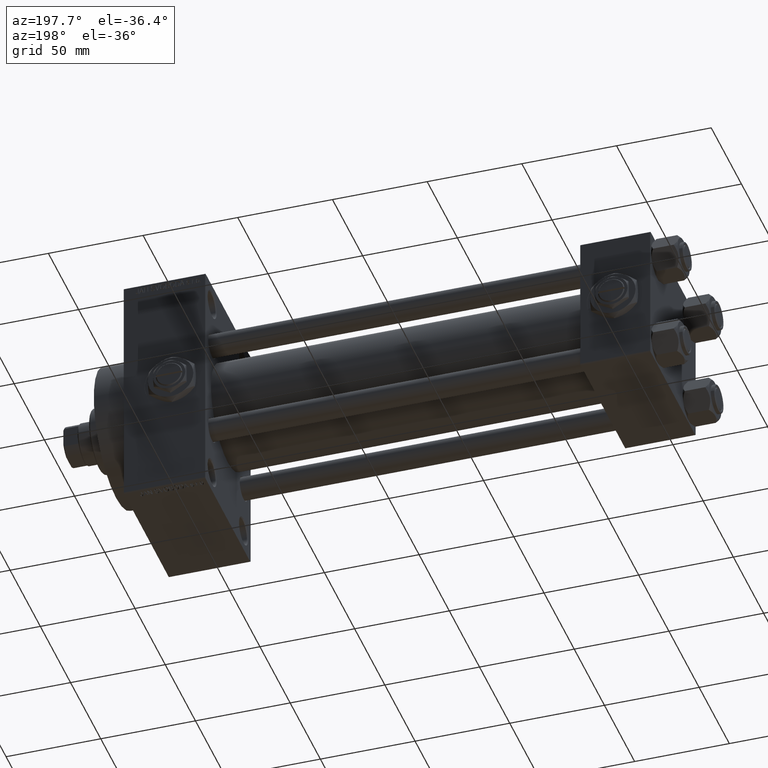
[diagram: clean part render]
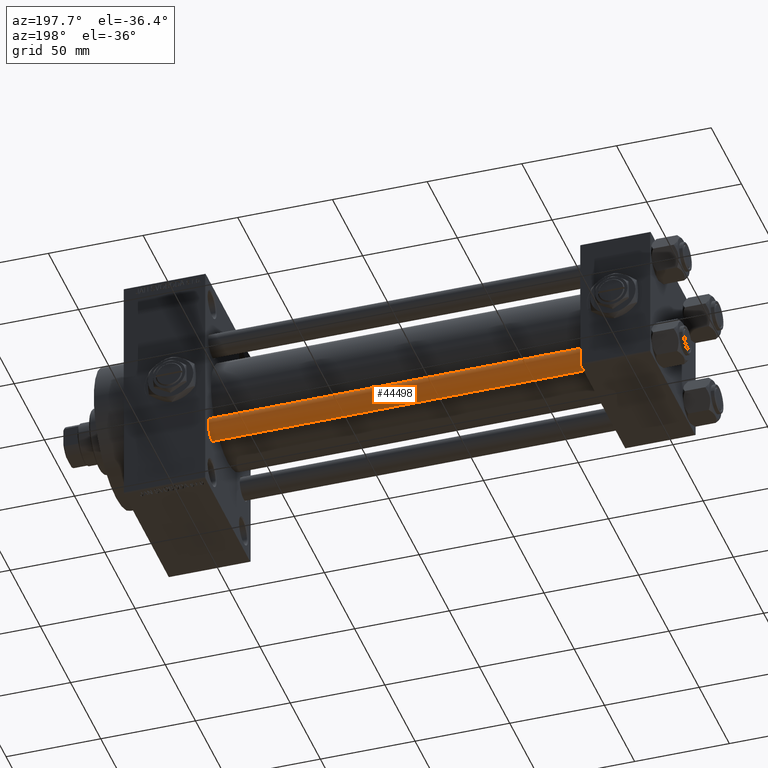
[diagram: same view with one face highlighted and labeled with its STEP entity id]
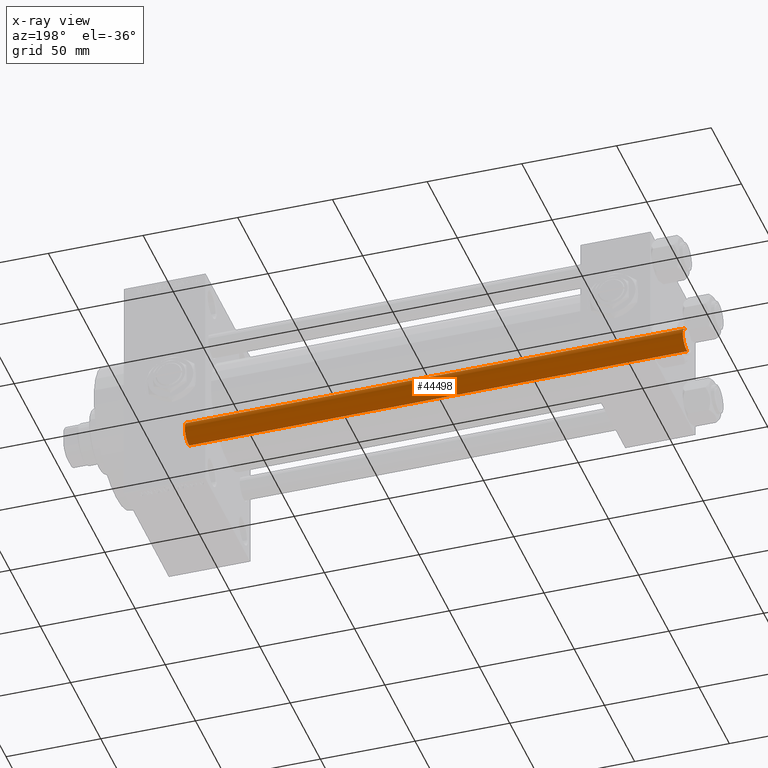
[diagram: x-ray of the same camera — body ghosted, the highlighted face saturated]
A machine part, auxiliary view. The second image highlights one B-rep face of the part: STEP entity #44498.
The next image is the same camera in x-ray: the body ghosted, the highlighted face saturated — about 0% of this face is hidden behind the body in this view.
In plain terms, the highlighted cylindrical surface (edge-blend (fillet) strip) has radius 6 mm, axis along (1, -0, 0).
Its self-contained STEP definition (entity closure, byte-faithful):
#1563 = VERTEX_POINT ( 'NONE', #33703 ) ;
#2226 = ORIENTED_EDGE ( 'NONE', *, *, #37594, .T. ) ;
#2313 = VERTEX_POINT ( 'NONE', #8410 ) ;
#2422 = VERTEX_POINT ( 'NONE', #6818 ) ;
#5471 = CARTESIAN_POINT ( 'NONE',  ( -6.000000000000000888, 0.000000000000000000, 0.5000000000000559552 ) ) ;
#6818 = CARTESIAN_POINT ( 'NONE',  ( -6.000000000000000888, 0.000000000000000000, 263.5000000000000568 ) ) ;
#7358 = CARTESIAN_POINT ( 'NONE',  ( 0.000000000000000000, 0.000000000000000000, 263.5000000000000568 ) ) ;
#7912 = AXIS2_PLACEMENT_3D ( 'NONE', #42910, #12728, #39399 ) ;
#8390 = AXIS2_PLACEMENT_3D ( 'NONE', #9322, #33686, #10781 ) ;
#8410 = CARTESIAN_POINT ( 'NONE',  ( 6.000000000000000888, 7.347880794884120722E-16, 263.5000000000000568 ) ) ;
#8549 = DIRECTION ( 'NONE',  ( -0.000000000000000000, -0.000000000000000000, -1.000000000000000000 ) ) ;
#9229 = EDGE_LOOP ( 'NONE', ( #47485, #2226, #20255, #22831 ) ) ;
#9322 = CARTESIAN_POINT ( 'NONE',  ( 0.000000000000000000, 0.000000000000000000, 0.5000000000000559552 ) ) ;
#9666 = EDGE_CURVE ( 'NONE', #1563, #39612, #20281, .T. ) ;
#10781 = DIRECTION ( 'NONE',  ( 1.000000000000000000, 0.000000000000000000, 0.000000000000000000 ) ) ;
#10833 = VECTOR ( 'NONE', #36343, 1000.000000000000000 ) ;
#12728 = DIRECTION ( 'NONE',  ( -0.000000000000000000, -0.000000000000000000, -1.000000000000000000 ) ) ;
#13744 = AXIS2_PLACEMENT_3D ( 'NONE', #7358, #14332, #48494 ) ;
#14332 = DIRECTION ( 'NONE',  ( 0.000000000000000000, 0.000000000000000000, -1.000000000000000000 ) ) ;
#20255 = ORIENTED_EDGE ( 'NONE', *, *, #9666, .T. ) ;
#20281 = CIRCLE ( 'NONE', #8390, 6.000000000000000888 ) ;
#22831 = ORIENTED_EDGE ( 'NONE', *, *, #31300, .F. ) ;
#24371 = LINE ( 'NONE', #47579, #10833 ) ;
#25554 = EDGE_CURVE ( 'NONE', #2422, #2313, #46381, .T. ) ;
#27921 = FACE_OUTER_BOUND ( 'NONE', #9229, .T. ) ;
#31300 = EDGE_CURVE ( 'NONE', #2422, #39612, #31450, .T. ) ;
#31450 = LINE ( 'NONE', #42183, #40187 ) ;
#33686 = DIRECTION ( 'NONE',  ( -0.000000000000000000, -0.000000000000000000, 1.000000000000000000 ) ) ;
#33703 = CARTESIAN_POINT ( 'NONE',  ( 6.000000000000000888, 7.347880794884120722E-16, 0.5000000000000559552 ) ) ;
#36343 = DIRECTION ( 'NONE',  ( -0.000000000000000000, -0.000000000000000000, -1.000000000000000000 ) ) ;
#37594 = EDGE_CURVE ( 'NONE', #2313, #1563, #24371, .T. ) ;
#39399 = DIRECTION ( 'NONE',  ( -1.000000000000000000, 0.000000000000000000, 0.000000000000000000 ) ) ;
#39612 = VERTEX_POINT ( 'NONE', #5471 ) ;
#40187 = VECTOR ( 'NONE', #8549, 1000.000000000000000 ) ;
#42183 = CARTESIAN_POINT ( 'NONE',  ( -6.000000000000000888, 0.000000000000000000, 264.0000000000000000 ) ) ;
#42910 = CARTESIAN_POINT ( 'NONE',  ( 0.000000000000000000, 0.000000000000000000, 264.0000000000000000 ) ) ;
#43654 = CYLINDRICAL_SURFACE ( 'NONE', #7912, 6.000000000000000888 ) ;
#44498 = ADVANCED_FACE ( 'NONE', ( #27921 ), #43654, .T. ) ;
#46381 = CIRCLE ( 'NONE', #13744, 6.000000000000000888 ) ;
#47485 = ORIENTED_EDGE ( 'NONE', *, *, #25554, .T. ) ;
#47579 = CARTESIAN_POINT ( 'NONE',  ( 6.000000000000000888, 7.347880794884120722E-16, 264.0000000000000000 ) ) ;
#48494 = DIRECTION ( 'NONE',  ( 1.000000000000000000, 0.000000000000000000, 0.000000000000000000 ) ) ;